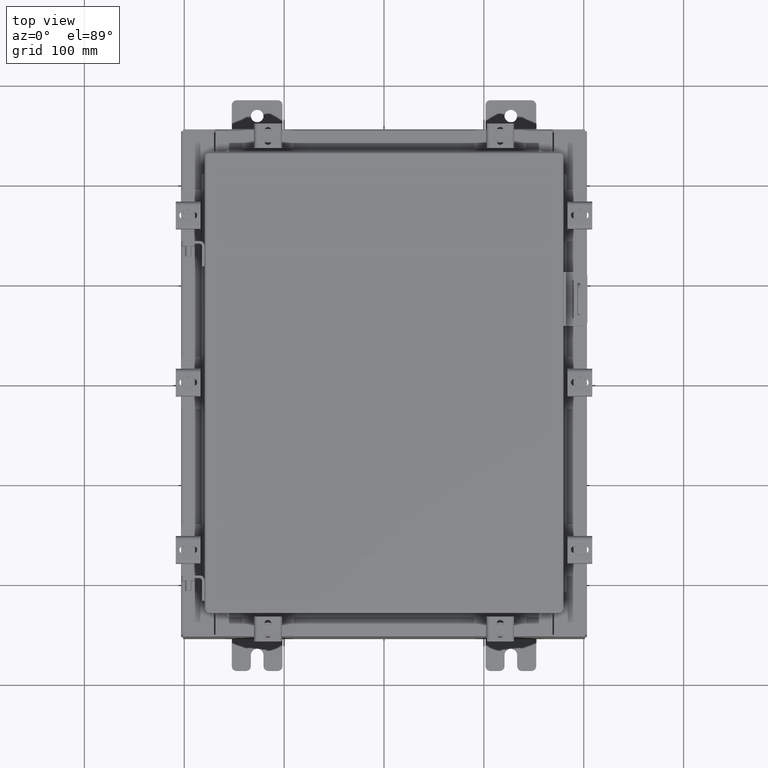
[diagram: clean part render]
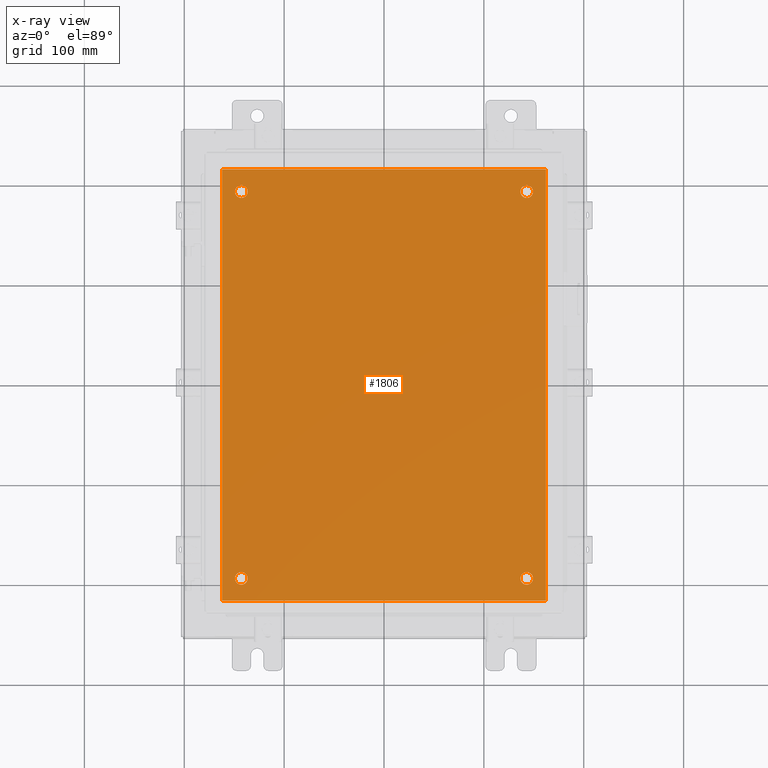
[diagram: x-ray — body ghosted, one internal face saturated and labeled with its STEP entity id]
A machine part, top view, then the same camera in x-ray: the body is ghosted and one INTERNAL B-rep face — a face not visible from any outside direction — is saturated and labeled: STEP entity #1806.
In plain terms, the highlighted planar face has unit normal (0, 0, -1).
Its self-contained STEP definition (entity closure, byte-faithful):
#64 = ORIENTED_EDGE ( 'NONE', *, *, #18601, .T. ) ;
#69 = ORIENTED_EDGE ( 'NONE', *, *, #20041, .T. ) ;
#99 = CARTESIAN_POINT ( 'NONE',  ( -5.375000000000000900, 7.625000000000001800, -0.1040000000000003100 ) ) ;
#246 = CIRCLE ( 'NONE', #5450, 0.2499999999999987000 ) ;
#330 = VERTEX_POINT ( 'NONE', #13577 ) ;
#461 = DIRECTION ( 'NONE',  ( -1.000000000000000000, 0.0000000000000000000, 0.0000000000000000000 ) ) ;
#993 = DIRECTION ( 'NONE',  ( -1.000000000000000000, 0.0000000000000000000, 0.0000000000000000000 ) ) ;
#1043 = PLANE ( 'NONE',  #8744 ) ;
#1099 = LINE ( 'NONE', #2333, #10891 ) ;
#1205 = ORIENTED_EDGE ( 'NONE', *, *, #4492, .T. ) ;
#1247 = VERTEX_POINT ( 'NONE', #11346 ) ;
#1348 = AXIS2_PLACEMENT_3D ( 'NONE', #9671, #21845, #11431 ) ;
#1806 = ADVANCED_FACE ( 'NONE', ( #16090, #20730, #2246, #20184, #15556 ), #1043, .T. ) ;
#2072 = DIRECTION ( 'NONE',  ( -0.0000000000000000000, -0.0000000000000000000, 1.000000000000000000 ) ) ;
#2246 = FACE_BOUND ( 'NONE', #9790, .T. ) ;
#2333 = CARTESIAN_POINT ( 'NONE',  ( -6.382999999999998200, 8.500000000000000000, -0.1039999999999997600 ) ) ;
#2748 = EDGE_LOOP ( 'NONE', ( #18856, #1205 ) ) ;
#2763 = CARTESIAN_POINT ( 'NONE',  ( -5.625000000000000000, -7.625000000000001800, -0.1040000000000003100 ) ) ;
#2776 = CARTESIAN_POINT ( 'NONE',  ( 5.625000000000004400, -7.625000000000000900, -0.1040000000000003100 ) ) ;
#2970 = EDGE_CURVE ( 'NONE', #11769, #10801, #1099, .T. ) ;
#3374 = VERTEX_POINT ( 'NONE', #4956 ) ;
#3477 = ORIENTED_EDGE ( 'NONE', *, *, #5991, .T. ) ;
#3515 = VERTEX_POINT ( 'NONE', #99 ) ;
#3551 = VERTEX_POINT ( 'NONE', #11997 ) ;
#3594 = CARTESIAN_POINT ( 'NONE',  ( -6.499999999999998200, -8.499999999999998200, -0.1040000000000003100 ) ) ;
#3601 = EDGE_CURVE ( 'NONE', #20447, #8325, #13305, .T. ) ;
#3629 = CARTESIAN_POINT ( 'NONE',  ( -6.499999999999998200, 8.500000000000000000, -0.1040000000000003100 ) ) ;
#3914 = VERTEX_POINT ( 'NONE', #6438 ) ;
#4147 = EDGE_CURVE ( 'NONE', #330, #11769, #10628, .T. ) ;
#4492 = EDGE_CURVE ( 'NONE', #3914, #3515, #18506, .T. ) ;
#4506 = DIRECTION ( 'NONE',  ( -1.000000000000000000, 0.0000000000000000000, 0.0000000000000000000 ) ) ;
#4516 = DIRECTION ( 'NONE',  ( -1.000000000000000000, 0.0000000000000000000, 0.0000000000000000000 ) ) ;
#4697 = CARTESIAN_POINT ( 'NONE',  ( 5.375000000000001800, 7.625000000000002700, -0.1040000000000003100 ) ) ;
#4956 = CARTESIAN_POINT ( 'NONE',  ( 5.874999999999999100, 7.625000000000002700, -0.1040000000000003100 ) ) ;
#5096 = ORIENTED_EDGE ( 'NONE', *, *, #4147, .F. ) ;
#5450 = AXIS2_PLACEMENT_3D ( 'NONE', #12484, #2072, #14234 ) ;
#5991 = EDGE_CURVE ( 'NONE', #3551, #1247, #8158, .T. ) ;
#6047 = EDGE_LOOP ( 'NONE', ( #69, #3477 ) ) ;
#6438 = CARTESIAN_POINT ( 'NONE',  ( -5.875000000000000000, 7.625000000000001800, -0.1040000000000003100 ) ) ;
#6496 = EDGE_CURVE ( 'NONE', #3515, #3914, #9215, .T. ) ;
#6583 = AXIS2_PLACEMENT_3D ( 'NONE', #18551, #19246, #19103 ) ;
#6728 = LINE ( 'NONE', #9562, #10820 ) ;
#7122 = EDGE_LOOP ( 'NONE', ( #8710, #7343, #5096, #7976 ) ) ;
#7280 = CIRCLE ( 'NONE', #8664, 0.2499999999999987000 ) ;
#7343 = ORIENTED_EDGE ( 'NONE', *, *, #2970, .F. ) ;
#7351 = AXIS2_PLACEMENT_3D ( 'NONE', #21310, #10887, #461 ) ;
#7377 = EDGE_CURVE ( 'NONE', #8325, #20447, #7280, .T. ) ;
#7798 = DIRECTION ( 'NONE',  ( -1.000000000000000000, 0.0000000000000000000, -0.0000000000000000000 ) ) ;
#7976 = ORIENTED_EDGE ( 'NONE', *, *, #20714, .F. ) ;
#8158 = CIRCLE ( 'NONE', #7351, 0.2499999999999998100 ) ;
#8325 = VERTEX_POINT ( 'NONE', #8729 ) ;
#8389 = CIRCLE ( 'NONE', #9108, 0.2499999999999998100 ) ;
#8649 = CARTESIAN_POINT ( 'NONE',  ( -5.625000000000000000, 7.625000000000001800, -0.1040000000000003100 ) ) ;
#8664 = AXIS2_PLACEMENT_3D ( 'NONE', #2776, #14919, #4516 ) ;
#8710 = ORIENTED_EDGE ( 'NONE', *, *, #16485, .F. ) ;
#8729 = CARTESIAN_POINT ( 'NONE',  ( 5.375000000000006200, -7.625000000000000900, -0.1040000000000003100 ) ) ;
#8744 = AXIS2_PLACEMENT_3D ( 'NONE', #20318, #17680, #7798 ) ;
#9108 = AXIS2_PLACEMENT_3D ( 'NONE', #2763, #14907, #4506 ) ;
#9215 = CIRCLE ( 'NONE', #20895, 0.2499999999999998100 ) ;
#9562 = CARTESIAN_POINT ( 'NONE',  ( 6.383000000000002700, -8.499999999999998200, -0.1039999999999997600 ) ) ;
#9671 = CARTESIAN_POINT ( 'NONE',  ( -5.625000000000000000, 7.625000000000001800, -0.1040000000000003100 ) ) ;
#9790 = EDGE_LOOP ( 'NONE', ( #64, #9801 ) ) ;
#9801 = ORIENTED_EDGE ( 'NONE', *, *, #12511, .T. ) ;
#10400 = DIRECTION ( 'NONE',  ( -1.000000000000000000, 0.0000000000000000000, 0.0000000000000000000 ) ) ;
#10496 = DIRECTION ( 'NONE',  ( 1.000000000000000000, 0.0000000000000000000, 0.0000000000000000000 ) ) ;
#10524 = CIRCLE ( 'NONE', #15839, 0.2499999999999987000 ) ;
#10628 = LINE ( 'NONE', #3629, #20970 ) ;
#10801 = VERTEX_POINT ( 'NONE', #21921 ) ;
#10820 = VECTOR ( 'NONE', #13065, 39.37007874015748100 ) ;
#10887 = DIRECTION ( 'NONE',  ( -0.0000000000000000000, -0.0000000000000000000, 1.000000000000000000 ) ) ;
#10891 = VECTOR ( 'NONE', #12212, 39.37007874015748100 ) ;
#11346 = CARTESIAN_POINT ( 'NONE',  ( -5.375000000000000900, -7.625000000000001800, -0.1040000000000003100 ) ) ;
#11395 = DIRECTION ( 'NONE',  ( -0.0000000000000000000, -0.0000000000000000000, 1.000000000000000000 ) ) ;
#11431 = DIRECTION ( 'NONE',  ( -1.000000000000000000, 0.0000000000000000000, 0.0000000000000000000 ) ) ;
#11769 = VERTEX_POINT ( 'NONE', #19796 ) ;
#11997 = CARTESIAN_POINT ( 'NONE',  ( -5.875000000000000000, -7.625000000000001800, -0.1040000000000003100 ) ) ;
#12212 = DIRECTION ( 'NONE',  ( 0.0000000000000000000, -1.000000000000000000, 0.0000000000000000000 ) ) ;
#12484 = CARTESIAN_POINT ( 'NONE',  ( 5.625000000000000000, 7.625000000000002700, -0.1040000000000003100 ) ) ;
#12511 = EDGE_CURVE ( 'NONE', #20819, #3374, #10524, .T. ) ;
#12729 = VERTEX_POINT ( 'NONE', #20657 ) ;
#12813 = EDGE_LOOP ( 'NONE', ( #15881, #14540 ) ) ;
#13065 = DIRECTION ( 'NONE',  ( 0.0000000000000000000, 1.000000000000000000, 0.0000000000000000000 ) ) ;
#13305 = CIRCLE ( 'NONE', #6583, 0.2499999999999987000 ) ;
#13577 = CARTESIAN_POINT ( 'NONE',  ( 6.383000000000000900, 8.500000000000000000, -0.1040000000000003100 ) ) ;
#14021 = DIRECTION ( 'NONE',  ( -1.000000000000000000, -0.0000000000000000000, -0.0000000000000000000 ) ) ;
#14234 = DIRECTION ( 'NONE',  ( -1.000000000000000000, 0.0000000000000000000, 0.0000000000000000000 ) ) ;
#14540 = ORIENTED_EDGE ( 'NONE', *, *, #7377, .T. ) ;
#14907 = DIRECTION ( 'NONE',  ( -0.0000000000000000000, -0.0000000000000000000, 1.000000000000000000 ) ) ;
#14919 = DIRECTION ( 'NONE',  ( -0.0000000000000000000, -0.0000000000000000000, 1.000000000000000000 ) ) ;
#15556 = FACE_OUTER_BOUND ( 'NONE', #7122, .T. ) ;
#15839 = AXIS2_PLACEMENT_3D ( 'NONE', #21814, #11395, #993 ) ;
#15881 = ORIENTED_EDGE ( 'NONE', *, *, #3601, .T. ) ;
#16090 = FACE_BOUND ( 'NONE', #6047, .T. ) ;
#16104 = LINE ( 'NONE', #3594, #21293 ) ;
#16485 = EDGE_CURVE ( 'NONE', #10801, #12729, #16104, .T. ) ;
#17397 = CARTESIAN_POINT ( 'NONE',  ( 5.875000000000003600, -7.625000000000000900, -0.1040000000000003100 ) ) ;
#17680 = DIRECTION ( 'NONE',  ( 0.0000000000000000000, 0.0000000000000000000, -1.000000000000000000 ) ) ;
#18506 = CIRCLE ( 'NONE', #1348, 0.2499999999999998100 ) ;
#18551 = CARTESIAN_POINT ( 'NONE',  ( 5.625000000000004400, -7.625000000000000900, -0.1040000000000003100 ) ) ;
#18601 = EDGE_CURVE ( 'NONE', #3374, #20819, #246, .T. ) ;
#18856 = ORIENTED_EDGE ( 'NONE', *, *, #6496, .T. ) ;
#19103 = DIRECTION ( 'NONE',  ( -1.000000000000000000, 0.0000000000000000000, 0.0000000000000000000 ) ) ;
#19246 = DIRECTION ( 'NONE',  ( -0.0000000000000000000, -0.0000000000000000000, 1.000000000000000000 ) ) ;
#19796 = CARTESIAN_POINT ( 'NONE',  ( -6.382999999999998200, 8.500000000000000000, -0.1039999999999997600 ) ) ;
#20041 = EDGE_CURVE ( 'NONE', #1247, #3551, #8389, .T. ) ;
#20184 = FACE_BOUND ( 'NONE', #2748, .T. ) ;
#20318 = CARTESIAN_POINT ( 'NONE',  ( 0.0000000000000000000, 0.0000000000000000000, -0.1040000000000003100 ) ) ;
#20447 = VERTEX_POINT ( 'NONE', #17397 ) ;
#20657 = CARTESIAN_POINT ( 'NONE',  ( 6.383000000000000900, -8.499999999999998200, -0.1040000000000003100 ) ) ;
#20714 = EDGE_CURVE ( 'NONE', #12729, #330, #6728, .T. ) ;
#20730 = FACE_BOUND ( 'NONE', #12813, .T. ) ;
#20819 = VERTEX_POINT ( 'NONE', #4697 ) ;
#20824 = DIRECTION ( 'NONE',  ( -0.0000000000000000000, -0.0000000000000000000, 1.000000000000000000 ) ) ;
#20895 = AXIS2_PLACEMENT_3D ( 'NONE', #8649, #20824, #10400 ) ;
#20970 = VECTOR ( 'NONE', #14021, 39.37007874015748100 ) ;
#21293 = VECTOR ( 'NONE', #10496, 39.37007874015748100 ) ;
#21310 = CARTESIAN_POINT ( 'NONE',  ( -5.625000000000000000, -7.625000000000001800, -0.1040000000000003100 ) ) ;
#21814 = CARTESIAN_POINT ( 'NONE',  ( 5.625000000000000000, 7.625000000000002700, -0.1040000000000003100 ) ) ;
#21845 = DIRECTION ( 'NONE',  ( -0.0000000000000000000, -0.0000000000000000000, 1.000000000000000000 ) ) ;
#21921 = CARTESIAN_POINT ( 'NONE',  ( -6.382999999999998200, -8.499999999999998200, -0.1039999999999997600 ) ) ;